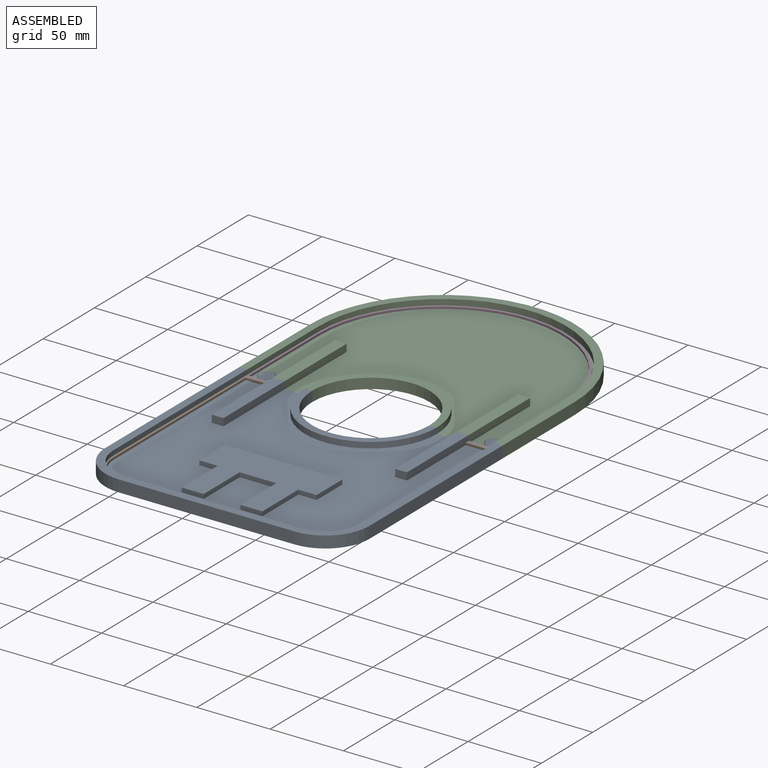
[diagram: assembled view]
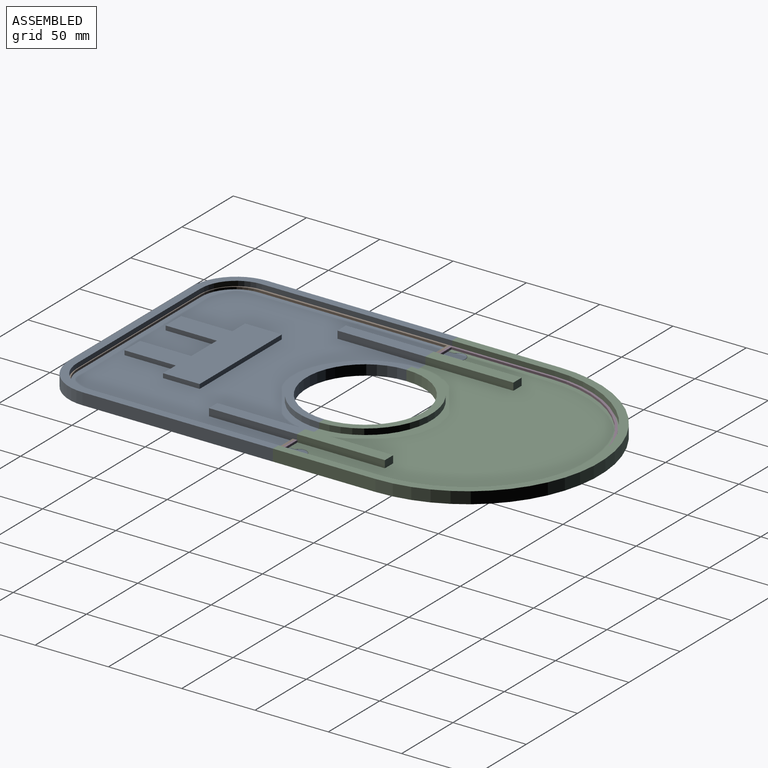
[diagram: assembled view, second angle]
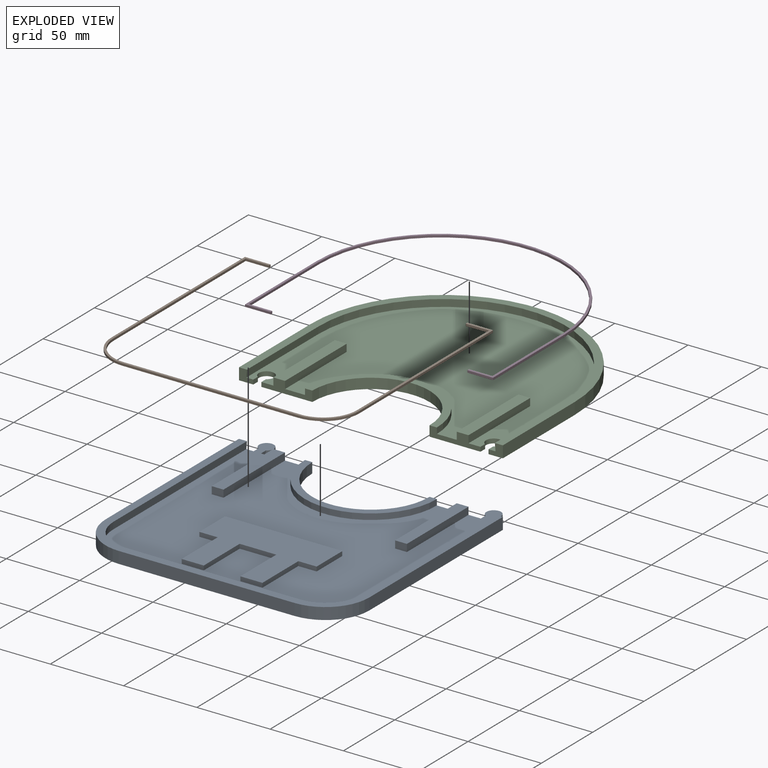
[diagram: exploded view]
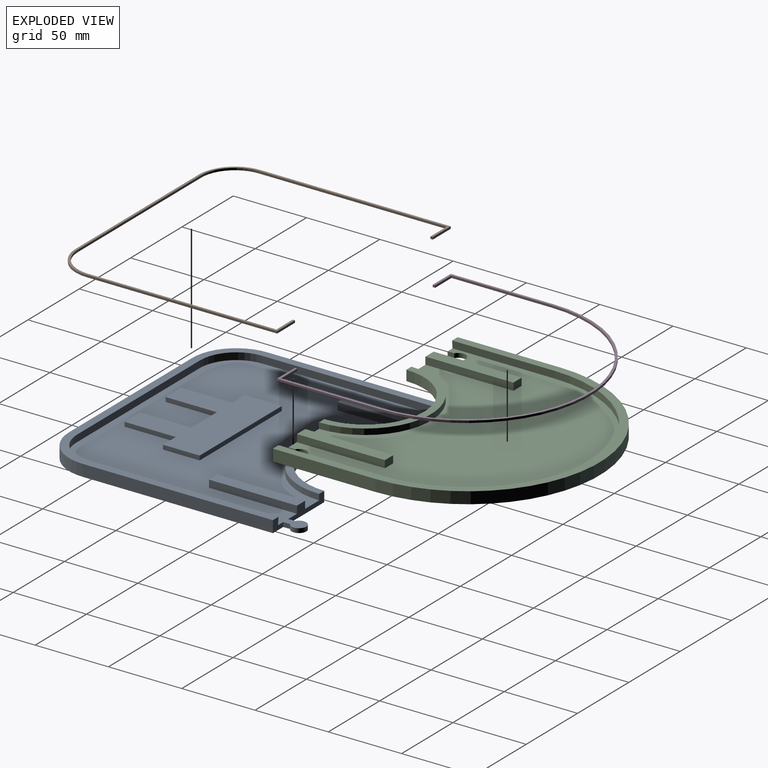
[diagram: exploded view, second angle]
ASSEMBLY  parts=4 mates=7
PART A: 47 faces, bbox 180x174x8 mm
  f0: plane 10x8mm, normal (0,1,0), area 56.1mm2, adj f2,f4,f6,f12,f14,f44
  f1: plane 35x8mm, normal (0,1,0), area 165mm2, adj f2,f6,f20,f21,f22,f23,f24,f25
  f2: plane 170x169mm, normal (0,0,1), area 19090.1mm2, adj f0,f1,f9,f10,f11,f12,f13,f15
  f3: plane 130x8mm, normal (1,0,0), area 1040mm2, adj f6,f8,f14,f39
  f4: plane 130x8mm, normal (-1,0,0), area 1040mm2, adj f0,f6,f7,f14
  f5: plane 120x8mm, normal (0,-1,0), area 960mm2, adj f6,f7,f8,f14
  f6: plane 180x174mm, normal (0,0,-1), area 26099.7mm2, adj f0,f1,f3,f4,f5,f7,f8,f23
  f7: cylinder r=30mm len=30mm, axis (0,0,1), area 377mm2, adj f4,f5,f6,f14
  f8: cylinder r=30mm len=30mm, axis (0,0,-1), area 377mm2, adj f3,f5,f6,f14
  f9: cone r=25mm half-angle=5deg, axis (0,0,-1), area 195.4mm2, adj f2,f10,f13,f14
  f10: plane 120x5mm, normal (0,1,-0.09), area 602.3mm2, adj f2,f9,f11,f14
  f11: cone r=25mm half-angle=5deg, axis (0,0,-1), area 195.4mm2, adj f2,f10,f12,f14
  f12: plane 130x5mm, normal (1,0,-0.09), area 652.5mm2, adj f0,f2,f11,f14
  f13: plane 130x5mm, normal (-1,0,-0.09), area 652.5mm2, adj f2,f9,f14,f39
  f14: plane 180x160mm, normal (0,0,1), area 2532.3mm2, adj f0,f3,f4,f5,f7,f8,f9,f10
  f15: plane 60x5mm, normal (-1,0,0), area 300mm2, adj f2,f16,f18,f40
  f16: plane 8x5mm, normal (0,-1,0), area 40mm2, adj f2,f15,f17,f18
  f17: plane 60x5mm, normal (1,0,0), area 300mm2, adj f2,f16,f18,f40
  f18: plane 60x8mm, normal (0,0,1), area 480mm2, adj f15,f16,f17,f40
  f19: plane 8x5mm, normal (0,-1,0), area 40mm2, adj f2,f20,f21,f22
  f20: plane 60x5mm, normal (1,0,0), area 300mm2, adj f1,f2,f19,f22
  f21: plane 60x5mm, normal (-1,0,0), area 300mm2, adj f1,f2,f19,f22
  f22: plane 60x8mm, normal (0,0,1), area 480mm2, adj f1,f19,f20,f21
  f23: cylinder r=40mm len=80mm, axis (0,0,1), area 879.6mm2, adj f1,f6,f25,f40
  f24: cylinder r=45mm len=90mm, axis (0,0,-1), area 565.5mm2, adj f1,f2,f25,f40
  f25: plane 90x45mm, normal (0,0,1), area 667.6mm2, adj f1,f23,f24,f40
  f26: plane 35x3mm, normal (1,0,0), area 105mm2, adj f2,f27,f37,f38
  f27: plane 12.5x3mm, normal (0,-1,0), area 37.5mm2, adj f2,f26,f28,f38
  f28: plane 25x3mm, normal (1,0,0), area 75mm2, adj f2,f27,f29,f38
  f29: plane 80x3mm, normal (0,1,0), area 240mm2, adj f2,f28,f30,f38
  f30: plane 25x3mm, normal (-1,0,0), area 75mm2, adj f2,f29,f31,f38
  f31: plane 12.5x3mm, normal (0,-1,0), area 37.5mm2, adj f2,f30,f32,f38
  f32: plane 35x3mm, normal (-1,0,0), area 105mm2, adj f2,f31,f33,f38
  f33: plane 15x3mm, normal (0,-1,0), area 45mm2, adj f2,f32,f34,f38
  f34: plane 35x3mm, normal (1,0,0), area 105mm2, adj f2,f33,f35,f38
  f35: plane 25x3mm, normal (0,-1,0), area 75mm2, adj f2,f34,f36,f38
  f36: plane 35x3mm, normal (-1,0,0), area 105mm2, adj f2,f35,f37,f38
  f37: plane 15x3mm, normal (0,-1,0), area 45mm2, adj f2,f26,f36,f38
  f38: plane 80x60mm, normal (0,0,1), area 3050mm2, adj f26,f27,f28,f29,f30,f31,f32,f33
  f39: plane 10x8mm, normal (0,1,0), area 56.1mm2, adj f2,f3,f6,f13,f14,f42
  f40: plane 35x8mm, normal (0,1,0), area 165mm2, adj f2,f6,f15,f17,f18,f23,f24,f25
  f41: plane 4.67x3mm, normal (-1,0,0), area 14mm2, adj f1,f2,f6,f43
  f42: plane 4.67x3mm, normal (1,0,0), area 14mm2, adj f2,f6,f39,f43
  f43: cylinder r=5mm len=10mm, axis (0,0,1), area 78.5mm2, adj f2,f6,f41,f42
  f44: plane 4.67x3mm, normal (-1,0,0), area 14mm2, adj f0,f2,f6,f46
  f45: plane 4.67x3mm, normal (1,0,0), area 14mm2, adj f2,f6,f40,f46
  f46: cylinder r=5mm len=10mm, axis (0,0,1), area 78.5mm2, adj f2,f6,f44,f45
PART B: 18 faces, bbox 169.2x154.6x1.5 mm
  f0: plane 128.4x1.5mm, normal (1,0,0), area 192.6mm2, adj f4,f10,f11,f17
  f1: plane 128.4x1.5mm, normal (-1,0,0), area 192.6mm2, adj f2,f10,f11,f15
  f2: cylinder r=23mm len=23mm, axis (0,0,-1), area 54.2mm2, adj f1,f3,f10,f11
  f3: plane 120x1.5mm, normal (0,1,0), area 180mm2, adj f2,f4,f10,f11
  f4: cylinder r=23mm len=23mm, axis (0,0,-1), area 54.2mm2, adj f0,f3,f10,f11
  f5: plane 120x1.5mm, normal (0,-1,0), area 180mm2, adj f6,f9,f10,f11
  f6: cylinder r=24.6mm len=24.6mm, axis (0,0,-1), area 58mm2, adj f5,f7,f10,f11
  f7: plane 130x1.5mm, normal (1,0,0), area 195mm2, adj f6,f10,f11,f12
  f8: plane 130x1.5mm, normal (-1,0,0), area 195mm2, adj f9,f10,f11,f13
  f9: cylinder r=24.6mm len=24.6mm, axis (0,0,-1), area 58mm2, adj f5,f8,f10,f11
  f10: plane 169.2x154.6mm, normal (0,0,1), area 778.5mm2, adj f0,f1,f2,f3,f4,f5,f6,f7
  f11: plane 169.2x154.6mm, normal (0,0,-1), area 778.5mm2, adj f0,f1,f2,f3,f4,f5,f6,f7
  f12: plane 17.5x1.5mm, normal (0,1,0), area 26.3mm2, adj f7,f10,f11,f14
  f13: plane 17.5x1.5mm, normal (0,1,0), area 26.3mm2, adj f8,f10,f11,f16
  f14: plane 1.6x1.5mm, normal (-1,0,0), area 2.4mm2, adj f10,f11,f12,f15
  f15: plane 15.9x1.5mm, normal (0,-1,0), area 23.8mm2, adj f1,f10,f11,f14
  f16: plane 1.6x1.5mm, normal (1,0,0), area 2.4mm2, adj f10,f11,f13,f17
  f17: plane 15.9x1.5mm, normal (0,-1,0), area 23.8mm2, adj f0,f10,f11,f16
PART C: 30 faces, bbox 180x160x8 mm
  f0: plane 34.75x8mm, normal (0,-1,0), area 164.2mm2, adj f2,f5,f12,f13,f14,f15,f16,f17
  f1: plane 9.75x8mm, normal (0,-1,0), area 55.3mm2, adj f2,f4,f5,f6,f8,f29
  f2: plane 170x155mm, normal (0,0,1), area 18890.9mm2, adj f0,f1,f6,f7,f9,f10,f12,f13
  f3: plane 70x8mm, normal (1,0,0), area 560mm2, adj f5,f8,f18,f22
  f4: plane 70x8mm, normal (-1,0,0), area 560mm2, adj f1,f5,f8,f18
  f5: plane 180x160mm, normal (0,0,-1), area 22593mm2, adj f0,f1,f3,f4,f15,f18,f22,f23
  f6: plane 70x5mm, normal (1,0,-0.09), area 351.3mm2, adj f1,f2,f8,f19
  f7: plane 70x5mm, normal (-1,0,-0.09), area 351.3mm2, adj f2,f8,f19,f22
  f8: plane 180x160mm, normal (0,0,1), area 2252.2mm2, adj f1,f3,f4,f6,f7,f18,f19,f22
  f9: plane 60x5mm, normal (-1,0,0), area 300mm2, adj f2,f11,f20,f23
  f10: plane 60x5mm, normal (1,0,0), area 300mm2, adj f2,f11,f20,f23
  f11: plane 60x8mm, normal (0,0,1), area 480mm2, adj f9,f10,f20,f23
  f12: plane 60x5mm, normal (1,0,0), area 300mm2, adj f0,f2,f14,f21
  f13: plane 60x5mm, normal (-1,0,0), area 300mm2, adj f0,f2,f14,f21
  f14: plane 60x8mm, normal (0,0,1), area 480mm2, adj f0,f12,f13,f21
  f15: cylinder r=40mm len=80mm, axis (0,0,1), area 879.6mm2, adj f0,f5,f17,f23
  f16: cylinder r=45mm len=90mm, axis (0,0,-1), area 565.5mm2, adj f0,f2,f17,f23
  f17: plane 90x45mm, normal (0,0,1), area 667.6mm2, adj f0,f15,f16,f23
  f18: cylinder r=90mm len=180mm, axis (0,0,-1), area 2261.9mm2, adj f3,f4,f5,f8
  f19: cone r=85mm half-angle=5deg, axis (0,0,-1), area 1336.8mm2, adj f2,f6,f7,f8
  f20: plane 8x5mm, normal (0,1,0), area 40mm2, adj f2,f9,f10,f11
  f21: plane 8x5mm, normal (0,1,0), area 40mm2, adj f2,f12,f13,f14
  f22: plane 9.75x8mm, normal (0,-1,0), area 55.3mm2, adj f2,f3,f5,f7,f8,f24
  f23: plane 34.75x8mm, normal (0,-1,0), area 164.2mm2, adj f2,f5,f9,f10,f11,f15,f16,f17
  f24: plane 4.53x3mm, normal (-1,0,0), area 13.6mm2, adj f2,f5,f22,f25
  f25: cylinder r=5.25mm len=10.5mm, axis (0,0,1), area 81.6mm2, adj f2,f5,f24,f26
  f26: plane 4.53x3mm, normal (1,0,0), area 13.6mm2, adj f0,f2,f5,f25
  f27: plane 4.53x3mm, normal (-1,0,0), area 13.6mm2, adj f2,f5,f23,f28
  f28: cylinder r=5.25mm len=10.5mm, axis (0,0,1), area 81.6mm2, adj f2,f5,f27,f29
  f29: plane 4.53x3mm, normal (1,0,0), area 13.6mm2, adj f1,f2,f5,f28
PART D: 14 faces, bbox 169.2x154.6x1.5 mm
  f0: plane 68.4x1.5mm, normal (1,0,0), area 102.6mm2, adj f1,f6,f7,f11
  f1: cylinder r=83mm len=166mm, axis (0,0,-1), area 391.1mm2, adj f0,f5,f6,f7
  f2: plane 70x1.5mm, normal (1,0,0), area 105mm2, adj f3,f6,f7,f9
  f3: cylinder r=84.6mm len=169.2mm, axis (0,0,-1), area 398.7mm2, adj f2,f4,f6,f7
  f4: plane 70x1.5mm, normal (-1,0,0), area 105mm2, adj f3,f6,f7,f8
  f5: plane 68.4x1.5mm, normal (-1,0,0), area 102.6mm2, adj f1,f6,f7,f13
  f6: plane 169.2x154.6mm, normal (0,0,1), area 696.1mm2, adj f0,f1,f2,f3,f4,f5,f8,f9
  f7: plane 169.2x154.6mm, normal (0,0,-1), area 696.1mm2, adj f0,f1,f2,f3,f4,f5,f8,f9
  f8: plane 17.5x1.5mm, normal (0,-1,0), area 26.3mm2, adj f4,f6,f7,f10
  f9: plane 17.5x1.5mm, normal (0,-1,0), area 26.3mm2, adj f2,f6,f7,f12
  f10: plane 1.6x1.5mm, normal (1,0,0), area 2.4mm2, adj f6,f7,f8,f11
  f11: plane 15.9x1.5mm, normal (0,1,0), area 23.8mm2, adj f0,f6,f7,f10
  f12: plane 1.6x1.5mm, normal (-1,0,0), area 2.4mm2, adj f6,f7,f9,f13
  f13: plane 15.9x1.5mm, normal (0,1,0), area 23.8mm2, adj f5,f6,f7,f12
PLACE A t=(322.18,-119.28,88.73)mm
PLACE B t=(321.75,-120.53,88.73)mm
PLACE C t=(322.18,-119.28,88.73)mm
PLACE D t=(321.75,-120.53,88.73)mm
MATE planar D.f4 <-> B.f8  axis (-1,0,0) through (237.15,-85.53,92.48)mm
MATE planar D.f8 <-> B.f13  axis (0,-1,0) through (245.9,-120.53,92.48)mm
MATE planar A.f40 <-> C.f23  axis (0,1,0) through (259.61,-119.28,96.73)mm
MATE planar A.f2 <-> C.f2  axis (0,0,1) through (322.18,-202.16,91.73)mm
MATE cylindrical C.f28 <-> A.f46  axis (0,0,1) through (244.68,-110.28,90.23)mm
MATE planar C.f2 <-> D.f7  axis (0,0,1) through (322.18,-38.34,91.73)mm
MATE planar A.f2 <-> B.f11  axis (0,0,1) through (282.18,-204.28,91.73)mm
